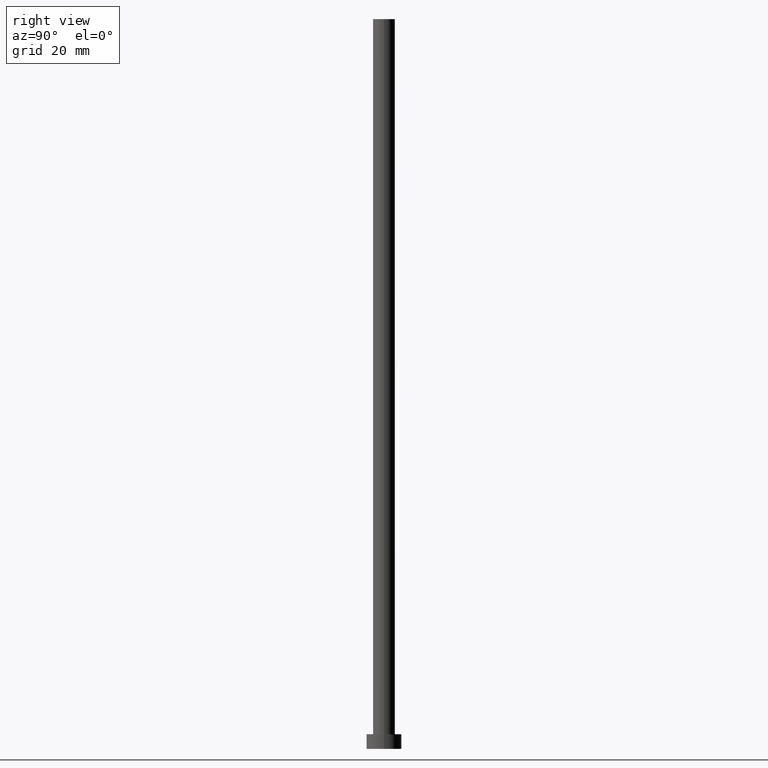
[diagram: clean part render]
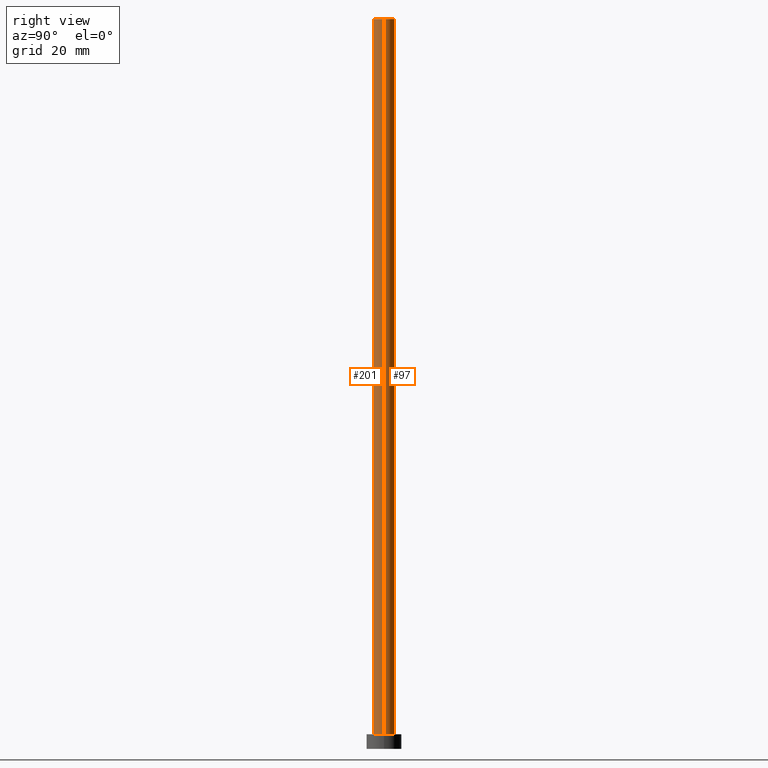
[diagram: same view with one multi-face feature highlighted, each face labeled with its STEP entity id]
A machine part, right view. The highlighted faces form ONE feature: a constant-radius fillet chain: 2 tangent blend faces with common blend radius 3.75 mm. The faces share edges in the B-rep.
Their STEP definitions:
[1] entity #97 (Cylinder):
#2 = DIRECTION ( 'NONE',  ( -0.000000000000000000, -0.000000000000000000, -1.000000000000000000 ) ) ;
#4 = CARTESIAN_POINT ( 'NONE',  ( 0.000000000000000000, 0.000000000000000000, 250.0000000000000000 ) ) ;
#24 = ORIENTED_EDGE ( 'NONE', *, *, #115, .T. ) ;
#28 = CARTESIAN_POINT ( 'NONE',  ( -3.750000000000000000, 0.000000000000000000, 250.0000000000000000 ) ) ;
#29 = DIRECTION ( 'NONE',  ( -0.000000000000000000, -0.000000000000000000, -1.000000000000000000 ) ) ;
#37 = VECTOR ( 'NONE', #29, 1000.000000000000000 ) ;
#38 = ORIENTED_EDGE ( 'NONE', *, *, #52, .F. ) ;
#51 = CARTESIAN_POINT ( 'NONE',  ( 3.750000000000000000, 4.592425496802573972E-16, 250.0000000000000000 ) ) ;
#52 = EDGE_CURVE ( 'NONE', #93, #99, #69, .T. ) ;
#58 = ORIENTED_EDGE ( 'NONE', *, *, #168, .F. ) ;
#63 = DIRECTION ( 'NONE',  ( -1.000000000000000000, 0.000000000000000000, 0.000000000000000000 ) ) ;
#69 = CIRCLE ( 'NONE', #105, 3.750000000000000000 ) ;
#77 = CIRCLE ( 'NONE', #228, 3.750000000000000000 ) ;
#81 = DIRECTION ( 'NONE',  ( 1.000000000000000000, 0.000000000000000000, 0.000000000000000000 ) ) ;
#84 = DIRECTION ( 'NONE',  ( 0.000000000000000000, 0.000000000000000000, 1.000000000000000000 ) ) ;
#88 = LINE ( 'NONE', #28, #37 ) ;
#93 = VERTEX_POINT ( 'NONE', #241 ) ;
#97 = ADVANCED_FACE ( 'NONE', ( #194 ), #244, .T. ) ;
#99 = VERTEX_POINT ( 'NONE', #124 ) ;
#105 = AXIS2_PLACEMENT_3D ( 'NONE', #4, #84, #81 ) ;
#106 = ORIENTED_EDGE ( 'NONE', *, *, #157, .T. ) ;
#115 = EDGE_CURVE ( 'NONE', #216, #242, #77, .T. ) ;
#124 = CARTESIAN_POINT ( 'NONE',  ( -3.750000000000000000, 0.000000000000000000, 250.0000000000000000 ) ) ;
#130 = DIRECTION ( 'NONE',  ( -0.000000000000000000, -0.000000000000000000, -1.000000000000000000 ) ) ;
#133 = CARTESIAN_POINT ( 'NONE',  ( 3.750000000000000000, 4.592425496802573972E-16, 5.000000000000000000 ) ) ;
#135 = AXIS2_PLACEMENT_3D ( 'NONE', #178, #2, #63 ) ;
#145 = DIRECTION ( 'NONE',  ( 0.000000000000000000, 0.000000000000000000, 1.000000000000000000 ) ) ;
#148 = VECTOR ( 'NONE', #130, 1000.000000000000000 ) ;
#157 = EDGE_CURVE ( 'NONE', #93, #216, #202, .T. ) ;
#160 = CARTESIAN_POINT ( 'NONE',  ( 0.000000000000000000, 0.000000000000000000, 5.000000000000000000 ) ) ;
#168 = EDGE_CURVE ( 'NONE', #99, #242, #88, .T. ) ;
#178 = CARTESIAN_POINT ( 'NONE',  ( 0.000000000000000000, 0.000000000000000000, 250.0000000000000000 ) ) ;
#194 = FACE_OUTER_BOUND ( 'NONE', #212, .T. ) ;
#202 = LINE ( 'NONE', #51, #148 ) ;
#203 = CARTESIAN_POINT ( 'NONE',  ( -3.750000000000000000, 0.000000000000000000, 5.000000000000000000 ) ) ;
#212 = EDGE_LOOP ( 'NONE', ( #38, #106, #24, #58 ) ) ;
#216 = VERTEX_POINT ( 'NONE', #133 ) ;
#220 = DIRECTION ( 'NONE',  ( 1.000000000000000000, 0.000000000000000000, 0.000000000000000000 ) ) ;
#228 = AXIS2_PLACEMENT_3D ( 'NONE', #160, #145, #220 ) ;
#241 = CARTESIAN_POINT ( 'NONE',  ( 3.750000000000000000, 4.592425496802573972E-16, 250.0000000000000000 ) ) ;
#242 = VERTEX_POINT ( 'NONE', #203 ) ;
#244 = CYLINDRICAL_SURFACE ( 'NONE', #135, 3.750000000000000000 ) ;
[2] entity #201 (Cylinder):
#28 = CARTESIAN_POINT ( 'NONE',  ( -3.750000000000000000, 0.000000000000000000, 250.0000000000000000 ) ) ;
#29 = DIRECTION ( 'NONE',  ( -0.000000000000000000, -0.000000000000000000, -1.000000000000000000 ) ) ;
#37 = VECTOR ( 'NONE', #29, 1000.000000000000000 ) ;
#41 = ORIENTED_EDGE ( 'NONE', *, *, #57, .T. ) ;
#51 = CARTESIAN_POINT ( 'NONE',  ( 3.750000000000000000, 4.592425496802573972E-16, 250.0000000000000000 ) ) ;
#53 = DIRECTION ( 'NONE',  ( 1.000000000000000000, 0.000000000000000000, 0.000000000000000000 ) ) ;
#57 = EDGE_CURVE ( 'NONE', #242, #216, #139, .T. ) ;
#66 = CARTESIAN_POINT ( 'NONE',  ( 0.000000000000000000, 0.000000000000000000, 5.000000000000000000 ) ) ;
#70 = DIRECTION ( 'NONE',  ( -0.000000000000000000, -0.000000000000000000, -1.000000000000000000 ) ) ;
#86 = CYLINDRICAL_SURFACE ( 'NONE', #138, 3.750000000000000000 ) ;
#88 = LINE ( 'NONE', #28, #37 ) ;
#93 = VERTEX_POINT ( 'NONE', #241 ) ;
#99 = VERTEX_POINT ( 'NONE', #124 ) ;
#109 = FACE_OUTER_BOUND ( 'NONE', #253, .T. ) ;
#124 = CARTESIAN_POINT ( 'NONE',  ( -3.750000000000000000, 0.000000000000000000, 250.0000000000000000 ) ) ;
#126 = ORIENTED_EDGE ( 'NONE', *, *, #168, .T. ) ;
#130 = DIRECTION ( 'NONE',  ( -0.000000000000000000, -0.000000000000000000, -1.000000000000000000 ) ) ;
#133 = CARTESIAN_POINT ( 'NONE',  ( 3.750000000000000000, 4.592425496802573972E-16, 5.000000000000000000 ) ) ;
#138 = AXIS2_PLACEMENT_3D ( 'NONE', #249, #70, #151 ) ;
#139 = CIRCLE ( 'NONE', #238, 3.750000000000000000 ) ;
#140 = ORIENTED_EDGE ( 'NONE', *, *, #214, .F. ) ;
#147 = DIRECTION ( 'NONE',  ( 0.000000000000000000, 0.000000000000000000, 1.000000000000000000 ) ) ;
#148 = VECTOR ( 'NONE', #130, 1000.000000000000000 ) ;
#151 = DIRECTION ( 'NONE',  ( -1.000000000000000000, 0.000000000000000000, 0.000000000000000000 ) ) ;
#155 = ORIENTED_EDGE ( 'NONE', *, *, #157, .F. ) ;
#157 = EDGE_CURVE ( 'NONE', #93, #216, #202, .T. ) ;
#158 = DIRECTION ( 'NONE',  ( 1.000000000000000000, 0.000000000000000000, 0.000000000000000000 ) ) ;
#168 = EDGE_CURVE ( 'NONE', #99, #242, #88, .T. ) ;
#176 = AXIS2_PLACEMENT_3D ( 'NONE', #183, #230, #53 ) ;
#183 = CARTESIAN_POINT ( 'NONE',  ( 0.000000000000000000, 0.000000000000000000, 250.0000000000000000 ) ) ;
#201 = ADVANCED_FACE ( 'NONE', ( #109 ), #86, .T. ) ;
#202 = LINE ( 'NONE', #51, #148 ) ;
#203 = CARTESIAN_POINT ( 'NONE',  ( -3.750000000000000000, 0.000000000000000000, 5.000000000000000000 ) ) ;
#213 = CIRCLE ( 'NONE', #176, 3.750000000000000000 ) ;
#214 = EDGE_CURVE ( 'NONE', #99, #93, #213, .T. ) ;
#216 = VERTEX_POINT ( 'NONE', #133 ) ;
#230 = DIRECTION ( 'NONE',  ( 0.000000000000000000, 0.000000000000000000, 1.000000000000000000 ) ) ;
#238 = AXIS2_PLACEMENT_3D ( 'NONE', #66, #147, #158 ) ;
#241 = CARTESIAN_POINT ( 'NONE',  ( 3.750000000000000000, 4.592425496802573972E-16, 250.0000000000000000 ) ) ;
#242 = VERTEX_POINT ( 'NONE', #203 ) ;
#249 = CARTESIAN_POINT ( 'NONE',  ( 0.000000000000000000, 0.000000000000000000, 250.0000000000000000 ) ) ;
#253 = EDGE_LOOP ( 'NONE', ( #155, #140, #126, #41 ) ) ;